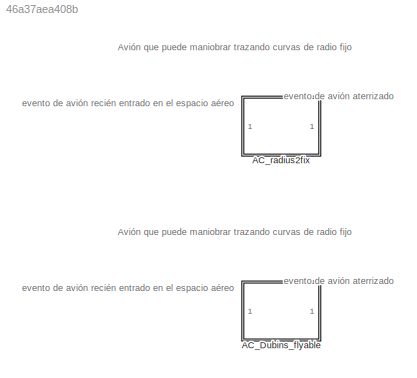
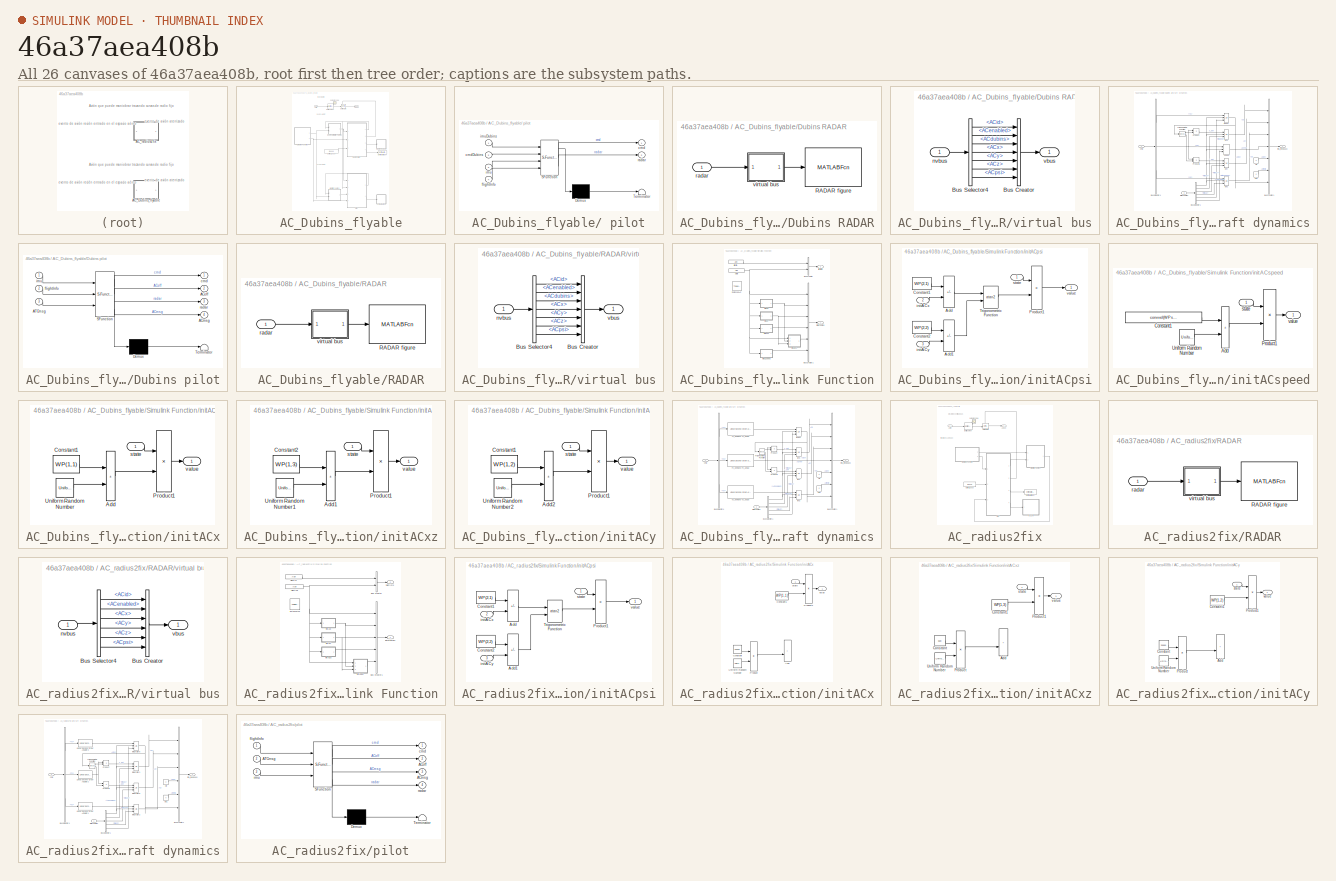
[diagram: thumbnail index - all 26 canvases of the model, root first then tree order]
MODEL slx_46a37aea408b
KIND library
CONFIG AbsTol = auto
CONFIG EnableMultiTasking = off
CONFIG FixedStep = auto
CONFIG MaxStep = auto
CONFIG MinStep = auto
CONFIG RelTol = 1e-3
CONFIG SampleTimeConstraint = Unconstrained
CONFIG SolverName = VariableStepAuto
CONFIG StartTime = 0.0
CONFIG StopTime = 10.0
BLOCK [SubSystem] AC_Dubins_flyable
  Ports = [1, 1]
  RequestExecContextInheritance = off
BLOCK [SubSystem] AC_Dubins_flyable/ pilot
  ErrorFcn = Stateflow.Translate.translate
  PermitHierarchicalResolution = ExplicitOnly
  Ports = [4, 2]
  RequestExecContextInheritance = off
  SFBlockType = Chart
  TreatAsAtomicUnit = on
BLOCK [Demux] AC_Dubins_flyable/ pilot/ Demux 
  Outputs = 1
  Ports = [1, 1]
BLOCK [S-Function] AC_Dubins_flyable/ pilot/ SFunction 
  EnableBusSupport = off
  FunctionName = sf_sfun
  Parameters = WP,WPspeed
  PortCounts = [4 3]
  Ports = [4, 3]
  SFcnIsStateOwnerBlock = off
  SFunctionDeploymentMode = off
  Tag = Stateflow S-Function 3
BLOCK [Terminator] AC_Dubins_flyable/ pilot/ Terminator 
BLOCK [Outport] AC_Dubins_flyable/ pilot/cmd
  VectorParamsAs1DForOutWhenUnconnected = off
BLOCK [Inport] AC_Dubins_flyable/ pilot/cmdDubins
  Port = 2
BLOCK [Inport] AC_Dubins_flyable/ pilot/flightInfo
  Port = 4
BLOCK [Inport] AC_Dubins_flyable/ pilot/imu
  Port = 3
BLOCK [Inport] AC_Dubins_flyable/ pilot/imuDubins
BLOCK [Outport] AC_Dubins_flyable/ pilot/radar
  Port = 2
  VectorParamsAs1DForOutWhenUnconnected = off
BLOCK [Inport] AC_Dubins_flyable/ACin
BLOCK [Outport] AC_Dubins_flyable/ACout
  VectorParamsAs1DForOutWhenUnconnected = off
BLOCK [SubSystem] AC_Dubins_flyable/Dubins RADAR
  NameLocation = top
  Ports = [1]
  RequestExecContextInheritance = off
BLOCK [MATLABFcn] AC_Dubins_flyable/Dubins RADAR/RADAR figure
  MATLABFcn = PBNsim_RADAR
  Output1D = off
  OutputDimensions = 0
  Ports = [1]
  StartFcn = clear functions;\nclc;
BLOCK [Inport] AC_Dubins_flyable/Dubins RADAR/radar
BLOCK [SubSystem] AC_Dubins_flyable/Dubins RADAR/virtual bus
  Ports = [1, 1]
  RequestExecContextInheritance = off
BLOCK [BusCreator] AC_Dubins_flyable/Dubins RADAR/virtual bus/Bus Creator
  DisplayOption = bar
  InheritFromInputs = off
  Inputs = 7
  OutDataTypeStr = Bus: bus_radar
  Ports = [7, 1]
BLOCK [BusSelector] AC_Dubins_flyable/Dubins RADAR/virtual bus/Bus Selector4
  OutputSignals = ACid,ACenabled,ACdubins,ACx,ACy,ACz,ACpsi
  Ports = [1, 7]
BLOCK [Inport] AC_Dubins_flyable/Dubins RADAR/virtual bus/nvbus
BLOCK [Outport] AC_Dubins_flyable/Dubins RADAR/virtual bus/vbus
  VectorParamsAs1DForOutWhenUnconnected = off
BLOCK [SubSystem] AC_Dubins_flyable/Dubins aircraft dynamics
  Ports = [2, 1]
  RequestExecContextInheritance = off
BLOCK [BusCreator] AC_Dubins_flyable/Dubins aircraft dynamics/Bus Creator1
  DisplayOption = bar
  InheritFromInputs = off
  Inputs = 7
  OutDataTypeStr = Bus: bus_IMU
  Ports = [7, 1]
BLOCK [BusSelector] AC_Dubins_flyable/Dubins aircraft dynamics/Bus Selector1
  OutputSignals = ACenabled,initACx,initACy,initACz,initACpsi,initACspeed
  Ports = [1, 6]
BLOCK [BusSelector] AC_Dubins_flyable/Dubins aircraft dynamics/Bus Selector4
  OutputSignals = Ys,Fa,Vs
  Ports = [1, 3]
BLOCK [Integrator] AC_Dubins_flyable/Dubins aircraft dynamics/INTpsi
  ExternalReset = rising
  InitialCondition = initX(3)
  InitialConditionSource = external
  Ports = [3, 1]
BLOCK [Integrator] AC_Dubins_flyable/Dubins aircraft dynamics/INTx
  ExternalReset = rising
  InitialCondition = initX(3)
  InitialConditionSource = external
  Ports = [3, 1]
BLOCK [Integrator] AC_Dubins_flyable/Dubins aircraft dynamics/INTy
  ExternalReset = rising
  InitialCondition = initX(3)
  InitialConditionSource = external
  Ports = [3, 1]
BLOCK [Integrator] AC_Dubins_flyable/Dubins aircraft dynamics/INTz
  ExternalReset = rising
  InitialCondition = initX(3)
  InitialConditionSource = external
  Ports = [3, 1]
BLOCK [Product] AC_Dubins_flyable/Dubins aircraft dynamics/Product
  Ports = [2, 1]
BLOCK [Product] AC_Dubins_flyable/Dubins aircraft dynamics/Product1
  Ports = [2, 1]
BLOCK [Trigonometry] AC_Dubins_flyable/Dubins aircraft dynamics/Trigonometric Function
  Operator = sincos
  Ports = [1, 2]
BLOCK [Inport] AC_Dubins_flyable/Dubins aircraft dynamics/cmd
BLOCK [Constant] AC_Dubins_flyable/Dubins aircraft dynamics/cte
  Value = 0
BLOCK [Constant] AC_Dubins_flyable/Dubins aircraft dynamics/cte1
  Value = 0
BLOCK [Outport] AC_Dubins_flyable/Dubins aircraft dynamics/imu_feedback
  OutputWhenDisabled = reset
  SourceOfInitialOutputValue = Input signal
  VectorParamsAs1DForOutWhenUnconnected = off
BLOCK [Inport] AC_Dubins_flyable/Dubins aircraft dynamics/initDynamics
  Port = 2
BLOCK [Delay] AC_Dubins_flyable/Dubins aircraft dynamics/speed
  DelayLength = 1
  ExternalReset = Rising
  InitialCondition = convvel(240,'kts','m/s');
  InitialConditionSource = Input port
  InputPortMap = u0,r5,p4
  Ports = [3, 1]
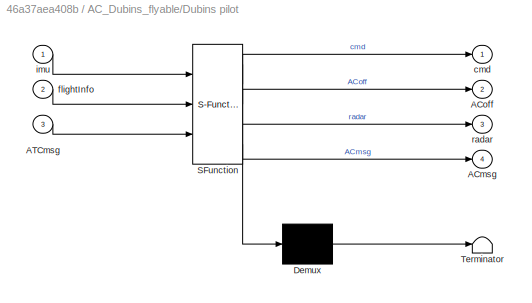
BLOCK [SubSystem] AC_Dubins_flyable/Dubins pilot
  ErrorFcn = Stateflow.Translate.translate
  PermitHierarchicalResolution = ExplicitOnly
  Ports = [3, 4]
  RequestExecContextInheritance = off
  SFBlockType = Chart
  TreatAsAtomicUnit = on
BLOCK [Demux] AC_Dubins_flyable/Dubins pilot/ Demux 
  Outputs = 1
  Ports = [1, 1]
BLOCK [S-Function] AC_Dubins_flyable/Dubins pilot/ SFunction 
  EnableBusSupport = off
  FunctionName = sf_sfun
  Parameters = WP,WPspeed
  PortCounts = [3 5]
  Ports = [3, 5]
  SFcnIsStateOwnerBlock = off
  SFunctionDeploymentMode = off
  Tag = Stateflow S-Function 2
BLOCK [Terminator] AC_Dubins_flyable/Dubins pilot/ Terminator 
BLOCK [Outport] AC_Dubins_flyable/Dubins pilot/ACmsg
  Port = 4
  VectorParamsAs1DForOutWhenUnconnected = off
BLOCK [Outport] AC_Dubins_flyable/Dubins pilot/ACoff
  Port = 2
  VectorParamsAs1DForOutWhenUnconnected = off
BLOCK [Inport] AC_Dubins_flyable/Dubins pilot/ATCmsg
  Port = 3
BLOCK [Outport] AC_Dubins_flyable/Dubins pilot/cmd
  VectorParamsAs1DForOutWhenUnconnected = off
BLOCK [Inport] AC_Dubins_flyable/Dubins pilot/flightInfo
  Port = 2
BLOCK [Inport] AC_Dubins_flyable/Dubins pilot/imu
BLOCK [Outport] AC_Dubins_flyable/Dubins pilot/radar
  Port = 3
  VectorParamsAs1DForOutWhenUnconnected = off
BLOCK [EntityGate] AC_Dubins_flyable/Entity Gate
  InputPortMap = u0,u1
  InputPortMessageModes = m,m
  OperatingMode = Release gate
  OutputPortMap = o0
  OutputPortMessageModes = m
  Ports = [2, 1]
BLOCK [EntityMulticast] AC_Dubins_flyable/Entity Multicast
  InputPortMessageModes = m
  MulticastTag = ACcomm
BLOCK [Queue] AC_Dubins_flyable/Entity Queue
  Capacity = 100
  EntityArrivalSource = Multicast
  MulticastTag = ATCcomm
  OutputPortMap = o5
  OutputPortMessageModes = m
  Ports = [0, 1]
BLOCK [EntityServer] AC_Dubins_flyable/Entity server
  Capacity = 1
  EntryAction = instancedAC(entity.flightId,true);
  InputPortMap = u2
  InputPortMessageModes = m
  NumberEntitiesInBlock = on
  OutputPortMap = o1,o9
  OutputPortMessageModes = n,m
  Ports = [1, 2]
  ServiceCompleteAction = instancedAC(entity.flightId,false);
  ServiceTimeValue = 10
BLOCK [SubSystem] AC_Dubins_flyable/RADAR
  NameLocation = top
  Ports = [1]
  RequestExecContextInheritance = off
BLOCK [MATLABFcn] AC_Dubins_flyable/RADAR/RADAR figure
  MATLABFcn = PBNsim_RADAR
  Output1D = off
  OutputDimensions = 0
  Ports = [1]
  StartFcn = clear functions;\nclc;
BLOCK [Inport] AC_Dubins_flyable/RADAR/radar
BLOCK [SubSystem] AC_Dubins_flyable/RADAR/virtual bus
  Ports = [1, 1]
  RequestExecContextInheritance = off
BLOCK [BusCreator] AC_Dubins_flyable/RADAR/virtual bus/Bus Creator
  DisplayOption = bar
  InheritFromInputs = off
  Inputs = 7
  OutDataTypeStr = Bus: bus_radar
  Ports = [7, 1]
BLOCK [BusSelector] AC_Dubins_flyable/RADAR/virtual bus/Bus Selector4
  OutputSignals = ACid,ACenabled,ACdubins,ACx,ACy,ACz,ACpsi
  Ports = [1, 7]
BLOCK [Inport] AC_Dubins_flyable/RADAR/virtual bus/nvbus
BLOCK [Outport] AC_Dubins_flyable/RADAR/virtual bus/vbus
  VectorParamsAs1DForOutWhenUnconnected = off
BLOCK [SubSystem] AC_Dubins_flyable/Simulink Function
  Ports = [0, 2, 0, 1]
  RequestExecContextInheritance = off
  TreatAsAtomicUnit = on
BLOCK [BusCreator] AC_Dubins_flyable/Simulink Function/Bus Creator
  DisplayOption = bar
  InheritFromInputs = off
  Inputs = 2
  OutDataTypeStr = Bus: bus_ADSB
  Ports = [2, 1]
BLOCK [BusCreator] AC_Dubins_flyable/Simulink Function/Bus Creator1
  DisplayOption = bar
  InheritFromInputs = off
  Inputs = 6
  OutDataTypeStr = Bus: bus_initDynamics
  Ports = [6, 1]
BLOCK [ArgIn] AC_Dubins_flyable/Simulink Function/flightID
  ArgumentName = flightID
BLOCK [Outport] AC_Dubins_flyable/Simulink Function/flightInfo
  Port = 2
  VectorParamsAs1DForOutWhenUnconnected = off
BLOCK [SubSystem] AC_Dubins_flyable/Simulink Function/initACpsi
  Ports = [3, 1]
  RequestExecContextInheritance = off
BLOCK [Sum] AC_Dubins_flyable/Simulink Function/initACpsi/Add
  IconShape = rectangular
  Inputs = +-
  Ports = [2, 1]
BLOCK [Sum] AC_Dubins_flyable/Simulink Function/initACpsi/Add1
  IconShape = rectangular
  Inputs = +-
  Ports = [2, 1]
BLOCK [Constant] AC_Dubins_flyable/Simulink Function/initACpsi/Constant1
  Value = WP(2,1)
BLOCK [Constant] AC_Dubins_flyable/Simulink Function/initACpsi/Constant2
  Value = WP(2,2)
BLOCK [Product] AC_Dubins_flyable/Simulink Function/initACpsi/Product1
  Ports = [2, 1]
BLOCK [Trigonometry] AC_Dubins_flyable/Simulink Function/initACpsi/Trigonometric Function
  Operator = atan2
  Ports = [2, 1]
BLOCK [Inport] AC_Dubins_flyable/Simulink Function/initACpsi/initACx
  Port = 2
BLOCK [Inport] AC_Dubins_flyable/Simulink Function/initACpsi/initACy
  Port = 3
BLOCK [Inport] AC_Dubins_flyable/Simulink Function/initACpsi/state
BLOCK [Outport] AC_Dubins_flyable/Simulink Function/initACpsi/value
  VectorParamsAs1DForOutWhenUnconnected = off
BLOCK [SubSystem] AC_Dubins_flyable/Simulink Function/initACspeed
  Ports = [1, 1]
  RequestExecContextInheritance = off
BLOCK [Sum] AC_Dubins_flyable/Simulink Function/initACspeed/Add
  IconShape = rectangular
  Ports = [2, 1]
BLOCK [Constant] AC_Dubins_flyable/Simulink Function/initACspeed/Constant1
  Value = convvel(WPspeed(2),'kts','m/s');
BLOCK [Product] AC_Dubins_flyable/Simulink Function/initACspeed/Product1
  Ports = [2, 1]
BLOCK [UniformRandomNumber] AC_Dubins_flyable/Simulink Function/initACspeed/Uniform Random Number
  Commented = on
  Maximum = 100
  Minimum = 0
  Seed = randi(10000)
BLOCK [Inport] AC_Dubins_flyable/Simulink Function/initACspeed/state
BLOCK [Outport] AC_Dubins_flyable/Simulink Function/initACspeed/value
  VectorParamsAs1DForOutWhenUnconnected = off
BLOCK [SubSystem] AC_Dubins_flyable/Simulink Function/initACx
  Ports = [1, 1]
  RequestExecContextInheritance = off
BLOCK [Sum] AC_Dubins_flyable/Simulink Function/initACx/Add
  IconShape = rectangular
  Ports = [2, 1]
BLOCK [Constant] AC_Dubins_flyable/Simulink Function/initACx/Constant1
  Value = WP(1,1)
BLOCK [Product] AC_Dubins_flyable/Simulink Function/initACx/Product1
  Ports = [2, 1]
BLOCK [UniformRandomNumber] AC_Dubins_flyable/Simulink Function/initACx/Uniform Random Number
  Commented = on
  Maximum = 100
  Minimum = 0
  Seed = randi(10000)
BLOCK [Inport] AC_Dubins_flyable/Simulink Function/initACx/state
BLOCK [Outport] AC_Dubins_flyable/Simulink Function/initACx/value
  VectorParamsAs1DForOutWhenUnconnected = off
BLOCK [SubSystem] AC_Dubins_flyable/Simulink Function/initACxz
  Ports = [1, 1]
  RequestExecContextInheritance = off
BLOCK [Sum] AC_Dubins_flyable/Simulink Function/initACxz/Add1
  IconShape = rectangular
  Ports = [2, 1]
BLOCK [Constant] AC_Dubins_flyable/Simulink Function/initACxz/Constant2
  Value = WP(1,3)
BLOCK [Product] AC_Dubins_flyable/Simulink Function/initACxz/Product1
  Ports = [2, 1]
BLOCK [UniformRandomNumber] AC_Dubins_flyable/Simulink Function/initACxz/Uniform Random Number1
  Commented = on
  Maximum = 20
  Minimum = 0
  Seed = randi(10000)
BLOCK [Inport] AC_Dubins_flyable/Simulink Function/initACxz/state
BLOCK [Outport] AC_Dubins_flyable/Simulink Function/initACxz/value
  VectorParamsAs1DForOutWhenUnconnected = off
BLOCK [SubSystem] AC_Dubins_flyable/Simulink Function/initACy
  Ports = [1, 1]
  RequestExecContextInheritance = off
BLOCK [Sum] AC_Dubins_flyable/Simulink Function/initACy/Add2
  IconShape = rectangular
  Ports = [2, 1]
BLOCK [Constant] AC_Dubins_flyable/Simulink Function/initACy/Constant1
  Value = WP(1,2)
BLOCK [Product] AC_Dubins_flyable/Simulink Function/initACy/Product1
  Ports = [2, 1]
BLOCK [UniformRandomNumber] AC_Dubins_flyable/Simulink Function/initACy/Uniform Random Number2
  Commented = on
  Maximum = 100
  Minimum = 0
  Seed = randi(10000)
BLOCK [Inport] AC_Dubins_flyable/Simulink Function/initACy/state
BLOCK [Outport] AC_Dubins_flyable/Simulink Function/initACy/value
  VectorParamsAs1DForOutWhenUnconnected = off
BLOCK [Outport] AC_Dubins_flyable/Simulink Function/initDynamics
  VectorParamsAs1DForOutWhenUnconnected = off
BLOCK [TriggerPort] AC_Dubins_flyable/Simulink Function/instancedAC
  FunctionName = instancedAC
  FunctionVisibility = scoped
  IsSimulinkFunction = on
  Ports = []
  StatesWhenEnabling = held
  TriggerType = function-call
  VariantControl = Variant
BLOCK [ArgIn] AC_Dubins_flyable/Simulink Function/state
  ArgumentName = state
  OutDataTypeStr = boolean
  Port = 2
BLOCK [SubSystem] AC_Dubins_flyable/aircraft dynamics
  Ports = [2, 1]
  RequestExecContextInheritance = off
BLOCK [BusCreator] AC_Dubins_flyable/aircraft dynamics/Bus Creator1
  DisplayOption = bar
  InheritFromInputs = off
  Inputs = 7
  OutDataTypeStr = Bus: bus_IMU
  Ports = [7, 1]
BLOCK [BusSelector] AC_Dubins_flyable/aircraft dynamics/Bus Selector1
  OutputSignals = ACenabled,initACx,initACy,initACz,initACpsi
  Ports = [1, 5]
BLOCK [BusSelector] AC_Dubins_flyable/aircraft dynamics/Bus Selector4
  OutputSignals = Ys,Fa,Vs
  Ports = [1, 3]
BLOCK [Reference] AC_Dubins_flyable/aircraft dynamics/Fv_demand - Fv_actual  REF=aerolibactuator/Linear Second-Order Actuator
  Ports = [1, 1]
  SourceBlock = aerolibactuator/Linear Second-Order Actuator
  SourceProductBaseCode = AE
  SourceType = LinearSecondOrderActuator
BLOCK [Integrator] AC_Dubins_flyable/aircraft dynamics/INTpsi
  ExternalReset = rising
  InitialCondition = initX(3)
  InitialConditionSource = external
  Ports = [3, 1]
BLOCK [Integrator] AC_Dubins_flyable/aircraft dynamics/INTx
  ExternalReset = rising
  InitialCondition = initX(3)
  InitialConditionSource = external
  Ports = [3, 1]
BLOCK [Integrator] AC_Dubins_flyable/aircraft dynamics/INTy
  ExternalReset = rising
  InitialCondition = initX(3)
  InitialConditionSource = external
  Ports = [3, 1]
BLOCK [Integrator] AC_Dubins_flyable/aircraft dynamics/INTz
  ExternalReset = rising
  InitialCondition = initX(3)
  InitialConditionSource = external
  Ports = [3, 1]
BLOCK [Product] AC_Dubins_flyable/aircraft dynamics/Product
  Ports = [2, 1]
BLOCK [Product] AC_Dubins_flyable/aircraft dynamics/Product1
  Ports = [2, 1]
BLOCK [Trigonometry] AC_Dubins_flyable/aircraft dynamics/Trigonometric Function
  Operator = sincos
  Ports = [1, 2]
BLOCK [Reference] AC_Dubins_flyable/aircraft dynamics/Vs_demand - Vs_actual  REF=aerolibactuator/Linear Second-Order Actuator
  Ports = [1, 1]
  SourceBlock = aerolibactuator/Linear Second-Order Actuator
  SourceProductBaseCode = AE
  SourceType = LinearSecondOrderActuator
BLOCK [Reference] AC_Dubins_flyable/aircraft dynamics/Ys_demand - Ys_actual  REF=aerolibactuator/Linear Second-Order Actuator
  Ports = [1, 1]
  SourceBlock = aerolibactuator/Linear Second-Order Actuator
  SourceProductBaseCode = AE
  SourceType = LinearSecondOrderActuator
BLOCK [Inport] AC_Dubins_flyable/aircraft dynamics/cmd
BLOCK [Constant] AC_Dubins_flyable/aircraft dynamics/cte
  Value = 0
BLOCK [Constant] AC_Dubins_flyable/aircraft dynamics/cte1
  Value = 0
BLOCK [Outport] AC_Dubins_flyable/aircraft dynamics/imu_feedback
  OutputWhenDisabled = reset
  SourceOfInitialOutputValue = Input signal
  VectorParamsAs1DForOutWhenUnconnected = off
BLOCK [Inport] AC_Dubins_flyable/aircraft dynamics/initDynamics
  Port = 2
BLOCK [Scope] AC_Dubins_flyable/server scope
  Floating = off
  NumInputPorts = 1
  Ports = [1]
  ScopeSpecificationString = Simulink.scopes.TimeScopeBlockCfg('CurrentConfiguration', extmgr.ConfigurationSet(extmgr.Configuration('Core','General UI',true,'ShowStatusbar',false),extmgr.Configuration('Core','Source UI',true),extmgr.Configuration('Sources','WiredSimulink',true,'DataLoggingVariableName','ScopeData1'),extmgr.Configuration('Visuals','Time Domain',true,'SerializedDisplays',{struct('MinYLimReal','-1','MaxYLimReal'...<+1587ch>
BLOCK [SubSystem] AC_radius2fix
  Ports = [1, 1]
  RequestExecContextInheritance = off
BLOCK [Inport] AC_radius2fix/ACin
BLOCK [Outport] AC_radius2fix/ACout
  VectorParamsAs1DForOutWhenUnconnected = off
BLOCK [EntityGate] AC_radius2fix/Entity Gate
  InputPortMap = u0,u1
  InputPortMessageModes = m,m
  OperatingMode = Release gate
  OutputPortMap = o0
  OutputPortMessageModes = m
  Ports = [2, 1]
BLOCK [EntityMulticast] AC_radius2fix/Entity Multicast
  InputPortMessageModes = m
  MulticastTag = ACcomm
BLOCK [Queue] AC_radius2fix/Entity Queue
  Capacity = 100
  EntityArrivalSource = Multicast
  MulticastTag = ATCcomm
  OutputPortMap = o5
  OutputPortMessageModes = m
  Ports = [0, 1]
BLOCK [EntityServer] AC_radius2fix/Entity server
  Capacity = 1
  EntryAction = instancedAC(entity.flightId,true);
  InputPortMap = u2
  InputPortMessageModes = m
  NumberEntitiesInBlock = on
  OutputPortMap = o1,o9
  OutputPortMessageModes = n,m
  Ports = [1, 2]
  ServiceCompleteAction = instancedAC(entity.flightId,false);
  ServiceTimeValue = 10
BLOCK [SubSystem] AC_radius2fix/RADAR
  Ports = [1]
  RequestExecContextInheritance = off
BLOCK [MATLABFcn] AC_radius2fix/RADAR/RADAR figure
  MATLABFcn = PBNsim_RADAR
  Output1D = off
  OutputDimensions = 0
  Ports = [1]
  StartFcn = clear functions;\nclc;
BLOCK [Inport] AC_radius2fix/RADAR/radar
BLOCK [SubSystem] AC_radius2fix/RADAR/virtual bus
  Ports = [1, 1]
  RequestExecContextInheritance = off
BLOCK [BusCreator] AC_radius2fix/RADAR/virtual bus/Bus Creator
  DisplayOption = bar
  InheritFromInputs = off
  Inputs = 6
  OutDataTypeStr = Bus: bus_radar
  Ports = [6, 1]
BLOCK [BusSelector] AC_radius2fix/RADAR/virtual bus/Bus Selector4
  OutputSignals = ACid,ACenabled,ACx,ACy,ACz,ACpsi
  Ports = [1, 6]
BLOCK [Inport] AC_radius2fix/RADAR/virtual bus/nvbus
BLOCK [Outport] AC_radius2fix/RADAR/virtual bus/vbus
  VectorParamsAs1DForOutWhenUnconnected = off
BLOCK [SubSystem] AC_radius2fix/Simulink Function
  Ports = [0, 2, 0, 1]
  RequestExecContextInheritance = off
  TreatAsAtomicUnit = on
BLOCK [BusCreator] AC_radius2fix/Simulink Function/Bus Creator
  DisplayOption = bar
  InheritFromInputs = off
  Inputs = 2
  OutDataTypeStr = Bus: bus_ADSB
  Ports = [2, 1]
BLOCK [BusCreator] AC_radius2fix/Simulink Function/Bus Creator1
  DisplayOption = bar
  InheritFromInputs = off
  Inputs = 5
  OutDataTypeStr = Bus: bus_initDynamics
  Ports = [5, 1]
BLOCK [ArgIn] AC_radius2fix/Simulink Function/flightID
  ArgumentName = flightID
BLOCK [ArgIn] AC_radius2fix/Simulink Function/flightID1
  ArgumentName = state
  OutDataTypeStr = boolean
  Port = 2
BLOCK [Outport] AC_radius2fix/Simulink Function/flightInfo
  Port = 2
  VectorParamsAs1DForOutWhenUnconnected = off
BLOCK [SubSystem] AC_radius2fix/Simulink Function/initACpsi
  Ports = [3, 1]
  RequestExecContextInheritance = off
BLOCK [Sum] AC_radius2fix/Simulink Function/initACpsi/Add
  IconShape = rectangular
  Inputs = +-
  Ports = [2, 1]
BLOCK [Sum] AC_radius2fix/Simulink Function/initACpsi/Add1
  IconShape = rectangular
  Inputs = +-
  Ports = [2, 1]
BLOCK [Constant] AC_radius2fix/Simulink Function/initACpsi/Constant1
  Value = WP(2,1)
BLOCK [Constant] AC_radius2fix/Simulink Function/initACpsi/Constant2
  Value = WP(2,2)
BLOCK [Product] AC_radius2fix/Simulink Function/initACpsi/Product1
  Ports = [2, 1]
BLOCK [Trigonometry] AC_radius2fix/Simulink Function/initACpsi/Trigonometric Function
  Operator = atan2
  Ports = [2, 1]
BLOCK [Inport] AC_radius2fix/Simulink Function/initACpsi/initACx
  Port = 2
BLOCK [Inport] AC_radius2fix/Simulink Function/initACpsi/initACy
  Port = 3
BLOCK [Inport] AC_radius2fix/Simulink Function/initACpsi/state
BLOCK [Outport] AC_radius2fix/Simulink Function/initACpsi/value
  VectorParamsAs1DForOutWhenUnconnected = off
BLOCK [SubSystem] AC_radius2fix/Simulink Function/initACx
  Ports = [1, 1]
  RequestExecContextInheritance = off
BLOCK [Sum] AC_radius2fix/Simulink Function/initACx/Add
  Commented = on
  IconShape = rectangular
  Ports = [2, 1]
BLOCK [Constant] AC_radius2fix/Simulink Function/initACx/Constant
  Commented = on
  Value = 20000
BLOCK [Constant] AC_radius2fix/Simulink Function/initACx/Constant1
  Value = WP(1,1)
BLOCK [Product] AC_radius2fix/Simulink Function/initACx/Product
  Commented = on
  Ports = [2, 1]
BLOCK [Product] AC_radius2fix/Simulink Function/initACx/Product1
  Ports = [2, 1]
BLOCK [UniformRandomNumber] AC_radius2fix/Simulink Function/initACx/Uniform Random Number
  Commented = on
  Minimum = 0
  Seed = randi(10000)
BLOCK [Inport] AC_radius2fix/Simulink Function/initACx/state
BLOCK [Outport] AC_radius2fix/Simulink Function/initACx/value
  VectorParamsAs1DForOutWhenUnconnected = off
BLOCK [SubSystem] AC_radius2fix/Simulink Function/initACxz
  Ports = [1, 1]
  RequestExecContextInheritance = off
BLOCK [Sum] AC_radius2fix/Simulink Function/initACxz/Add
  Commented = on
  IconShape = rectangular
  Ports = [2, 1]
BLOCK [Constant] AC_radius2fix/Simulink Function/initACxz/Constant
  Commented = on
  Value = 500
BLOCK [Constant] AC_radius2fix/Simulink Function/initACxz/Constant1
  Value = WP(1,3)
BLOCK [Product] AC_radius2fix/Simulink Function/initACxz/Product
  Commented = on
  Ports = [2, 1]
BLOCK [Product] AC_radius2fix/Simulink Function/initACxz/Product1
  Ports = [2, 1]
BLOCK [UniformRandomNumber] AC_radius2fix/Simulink Function/initACxz/Uniform Random Number
  Commented = on
  Minimum = 0
  Seed = randi(10000)
BLOCK [Inport] AC_radius2fix/Simulink Function/initACxz/state
BLOCK [Outport] AC_radius2fix/Simulink Function/initACxz/value
  VectorParamsAs1DForOutWhenUnconnected = off
BLOCK [SubSystem] AC_radius2fix/Simulink Function/initACy
  Ports = [1, 1]
  RequestExecContextInheritance = off
BLOCK [Sum] AC_radius2fix/Simulink Function/initACy/Add
  Commented = on
  IconShape = rectangular
  Ports = [2, 1]
BLOCK [Constant] AC_radius2fix/Simulink Function/initACy/Constant
  Commented = on
  Value = 20000
BLOCK [Constant] AC_radius2fix/Simulink Function/initACy/Constant1
  Value = WP(1,2)
BLOCK [Product] AC_radius2fix/Simulink Function/initACy/Product
  Commented = on
  Ports = [2, 1]
BLOCK [Product] AC_radius2fix/Simulink Function/initACy/Product1
  Ports = [2, 1]
BLOCK [UniformRandomNumber] AC_radius2fix/Simulink Function/initACy/Uniform Random Number
  Commented = on
  Minimum = 0
  Seed = randi(10000)
BLOCK [Inport] AC_radius2fix/Simulink Function/initACy/state
BLOCK [Outport] AC_radius2fix/Simulink Function/initACy/value
  VectorParamsAs1DForOutWhenUnconnected = off
BLOCK [Outport] AC_radius2fix/Simulink Function/initDynamics
  VectorParamsAs1DForOutWhenUnconnected = off
BLOCK [TriggerPort] AC_radius2fix/Simulink Function/instanceAC1
  FunctionName = instancedAC
  FunctionVisibility = scoped
  IsSimulinkFunction = on
  Ports = []
  StatesWhenEnabling = held
  TriggerType = function-call
  VariantControl = Variant
BLOCK [SubSystem] AC_radius2fix/aircraft dynamics
  Ports = [2, 1]
  RequestExecContextInheritance = off
BLOCK [BusCreator] AC_radius2fix/aircraft dynamics/Bus Creator1
  DisplayOption = bar
  InheritFromInputs = off
  Inputs = 6
  OutDataTypeStr = Bus: bus_IMU
  Ports = [6, 1]
BLOCK [BusSelector] AC_radius2fix/aircraft dynamics/Bus Selector1
  OutputSignals = ACenabled,initACx,initACy,initACz,initACpsi
  Ports = [1, 5]
BLOCK [BusSelector] AC_radius2fix/aircraft dynamics/Bus Selector4
  OutputSignals = Ys,Fs,Vs
  Ports = [1, 3]
BLOCK [Integrator] AC_radius2fix/aircraft dynamics/Integrator1
  ExternalReset = rising
  InitialCondition = initX(3)
  InitialConditionSource = external
  Ports = [3, 1]
BLOCK [Integrator] AC_radius2fix/aircraft dynamics/Integrator2
  ExternalReset = rising
  InitialCondition = initX(3)
  InitialConditionSource = external
  Ports = [3, 1]
BLOCK [Integrator] AC_radius2fix/aircraft dynamics/Integrator5
  ExternalReset = rising
  InitialCondition = initX(3)
  InitialConditionSource = external
  Ports = [3, 1]
BLOCK [Integrator] AC_radius2fix/aircraft dynamics/Integrator6
  ExternalReset = rising
  InitialCondition = initX(3)
  InitialConditionSource = external
  Ports = [3, 1]
BLOCK [Reference] AC_radius2fix/aircraft dynamics/Linear Second-Order Actuator1  REF=aerolibactuator/Linear Second-Order Actuator
  Ports = [1, 1]
  SourceBlock = aerolibactuator/Linear Second-Order Actuator
  SourceProductBaseCode = AE
  SourceType = LinearSecondOrderActuator
BLOCK [Reference] AC_radius2fix/aircraft dynamics/Linear Second-Order Actuator2  REF=aerolibactuator/Linear Second-Order Actuator
  Ports = [1, 1]
  SourceBlock = aerolibactuator/Linear Second-Order Actuator
  SourceProductBaseCode = AE
  SourceType = LinearSecondOrderActuator
BLOCK [Reference] AC_radius2fix/aircraft dynamics/Linear Second-Order Actuator3  REF=aerolibactuator/Linear Second-Order Actuator
  Commented = through
  Ports = [1, 1]
  SourceBlock = aerolibactuator/Linear Second-Order Actuator
  SourceProductBaseCode = AE
  SourceType = LinearSecondOrderActuator
BLOCK [Product] AC_radius2fix/aircraft dynamics/Product
  Ports = [2, 1]
BLOCK [Product] AC_radius2fix/aircraft dynamics/Product1
  Ports = [2, 1]
BLOCK [Trigonometry] AC_radius2fix/aircraft dynamics/Trigonometric Function
  Operator = sincos
  Ports = [1, 2]
BLOCK [Inport] AC_radius2fix/aircraft dynamics/cmd
  Port = 2
BLOCK [Constant] AC_radius2fix/aircraft dynamics/cte
  Value = 0
BLOCK [Constant] AC_radius2fix/aircraft dynamics/cte1
  Value = 0
BLOCK [Outport] AC_radius2fix/aircraft dynamics/imu_feedback
  OutputWhenDisabled = reset
  SourceOfInitialOutputValue = Input signal
  VectorParamsAs1DForOutWhenUnconnected = off
BLOCK [Inport] AC_radius2fix/aircraft dynamics/initDynamics
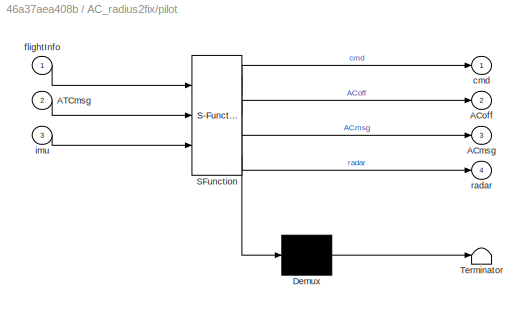
BLOCK [SubSystem] AC_radius2fix/pilot
  ErrorFcn = Stateflow.Translate.translate
  PermitHierarchicalResolution = ExplicitOnly
  Ports = [3, 4]
  RequestExecContextInheritance = off
  SFBlockType = Chart
  TreatAsAtomicUnit = on
BLOCK [Demux] AC_radius2fix/pilot/ Demux 
  Outputs = 1
  Ports = [1, 1]
BLOCK [S-Function] AC_radius2fix/pilot/ SFunction 
  EnableBusSupport = off
  FunctionName = sf_sfun
  Parameters = WP,WPabort,WPspeed
  PortCounts = [3 5]
  Ports = [3, 5]
  SFcnIsStateOwnerBlock = off
  SFunctionDeploymentMode = off
  Tag = Stateflow S-Function 1
BLOCK [Terminator] AC_radius2fix/pilot/ Terminator 
BLOCK [Outport] AC_radius2fix/pilot/ACmsg
  Port = 3
  VectorParamsAs1DForOutWhenUnconnected = off
BLOCK [Outport] AC_radius2fix/pilot/ACoff
  Port = 2
  VectorParamsAs1DForOutWhenUnconnected = off
BLOCK [Inport] AC_radius2fix/pilot/ATCmsg
  Port = 2
BLOCK [Outport] AC_radius2fix/pilot/cmd
  VectorParamsAs1DForOutWhenUnconnected = off
BLOCK [Inport] AC_radius2fix/pilot/flightInfo
BLOCK [Inport] AC_radius2fix/pilot/imu
  Port = 3
BLOCK [Outport] AC_radius2fix/pilot/radar
  Port = 4
  VectorParamsAs1DForOutWhenUnconnected = off
BLOCK [Scope] AC_radius2fix/server scope
  Floating = off
  NumInputPorts = 1
  Ports = [1]
  ScopeSpecificationString = Simulink.scopes.TimeScopeBlockCfg('CurrentConfiguration', extmgr.ConfigurationSet(extmgr.Configuration('Core','General UI',true,'ShowStatusbar',false),extmgr.Configuration('Core','Source UI',true),extmgr.Configuration('Sources','WiredSimulink',true,'DataLoggingVariableName','ScopeData1'),extmgr.Configuration('Visuals','Time Domain',true,'SerializedDisplays',{struct('MinYLimReal','-1','MaxYLimReal'...<+1613ch>
ANNOTATION (root): Avión que puede maniobrar trazando curvas de radio fijo
ANNOTATION (root): evento de avión aterrizado
ANNOTATION (root): evento de avión recién entrado en el espacio aéreo
ANNOTATION AC_Dubins_flyable: Dubins Aircraft
ANNOTATION AC_Dubins_flyable: Flyable Aircraft
ANNOTATION AC_Dubins_flyable: flow of Aircrafts
ANNOTATION AC_radius2fix: Discrete-event flow of ACs
ANNOTATION AC_radius2fix: time-driven AC model
LINE AC_Dubins_flyable/ pilot:1 -> AC_Dubins_flyable/aircraft dynamics:1
LINE AC_Dubins_flyable/ pilot:2 -> AC_Dubins_flyable/RADAR:1
LINE AC_Dubins_flyable/ACin:1 -> AC_Dubins_flyable/Entity server:1
LINE AC_Dubins_flyable/Dubins RADAR/radar:1 -> AC_Dubins_flyable/Dubins RADAR/virtual bus:1
LINE AC_Dubins_flyable/Dubins RADAR/virtual bus/Bus Creator:1 -> AC_Dubins_flyable/Dubins RADAR/virtual bus/vbus:1
LINE AC_Dubins_flyable/Dubins RADAR/virtual bus/Bus Selector4:1 -> AC_Dubins_flyable/Dubins RADAR/virtual bus/Bus Creator:1
LINE AC_Dubins_flyable/Dubins RADAR/virtual bus/Bus Selector4:2 -> AC_Dubins_flyable/Dubins RADAR/virtual bus/Bus Creator:2
LINE AC_Dubins_flyable/Dubins RADAR/virtual bus/Bus Selector4:3 -> AC_Dubins_flyable/Dubins RADAR/virtual bus/Bus Creator:3
LINE AC_Dubins_flyable/Dubins RADAR/virtual bus/Bus Selector4:4 -> AC_Dubins_flyable/Dubins RADAR/virtual bus/Bus Creator:4
LINE AC_Dubins_flyable/Dubins RADAR/virtual bus/Bus Selector4:5 -> AC_Dubins_flyable/Dubins RADAR/virtual bus/Bus Creator:5
LINE AC_Dubins_flyable/Dubins RADAR/virtual bus/Bus Selector4:6 -> AC_Dubins_flyable/Dubins RADAR/virtual bus/Bus Creator:6
LINE AC_Dubins_flyable/Dubins RADAR/virtual bus/Bus Selector4:7 -> AC_Dubins_flyable/Dubins RADAR/virtual bus/Bus Creator:7
LINE AC_Dubins_flyable/Dubins RADAR/virtual bus/nvbus:1 -> AC_Dubins_flyable/Dubins RADAR/virtual bus/Bus Selector4:1
LINE AC_Dubins_flyable/Dubins RADAR/virtual bus:1 -> AC_Dubins_flyable/Dubins RADAR/RADAR figure:1
LINE AC_Dubins_flyable/Dubins aircraft dynamics/Bus Creator1:1 -> AC_Dubins_flyable/Dubins aircraft dynamics/imu_feedback:1
NET AC_Dubins_flyable/Dubins aircraft dynamics/Bus Selector1:1 -> AC_Dubins_flyable/Dubins aircraft dynamics/INTpsi:2, AC_Dubins_flyable/Dubins aircraft dynamics/INTx:2, AC_Dubins_flyable/Dubins aircraft dynamics/INTy:2, AC_Dubins_flyable/Dubins aircraft dynamics/INTz:2, AC_Dubins_flyable/Dubins aircraft dynamics/speed:2
LINE AC_Dubins_flyable/Dubins aircraft dynamics/Bus Selector1:2 -> AC_Dubins_flyable/Dubins aircraft dynamics/INTx:3
LINE AC_Dubins_flyable/Dubins aircraft dynamics/Bus Selector1:3 -> AC_Dubins_flyable/Dubins aircraft dynamics/INTy:3
LINE AC_Dubins_flyable/Dubins aircraft dynamics/Bus Selector1:4 -> AC_Dubins_flyable/Dubins aircraft dynamics/INTz:3
LINE AC_Dubins_flyable/Dubins aircraft dynamics/Bus Selector1:5 -> AC_Dubins_flyable/Dubins aircraft dynamics/INTpsi:3
LINE AC_Dubins_flyable/Dubins aircraft dynamics/Bus Selector1:6 -> AC_Dubins_flyable/Dubins aircraft dynamics/speed:3
LINE AC_Dubins_flyable/Dubins aircraft dynamics/Bus Selector4:1 -> AC_Dubins_flyable/Dubins aircraft dynamics/INTpsi:1
NET AC_Dubins_flyable/Dubins aircraft dynamics/Bus Selector4:2 -> AC_Dubins_flyable/Dubins aircraft dynamics/Product1:1, AC_Dubins_flyable/Dubins aircraft dynamics/Product:1, AC_Dubins_flyable/Dubins aircraft dynamics/speed:1
LINE AC_Dubins_flyable/Dubins aircraft dynamics/Bus Selector4:3 -> AC_Dubins_flyable/Dubins aircraft dynamics/INTz:1
NET AC_Dubins_flyable/Dubins aircraft dynamics/INTpsi:1 -> AC_Dubins_flyable/Dubins aircraft dynamics/Bus Creator1:7, AC_Dubins_flyable/Dubins aircraft dynamics/Trigonometric Function:1
LINE AC_Dubins_flyable/Dubins aircraft dynamics/INTx:1 -> AC_Dubins_flyable/Dubins aircraft dynamics/Bus Creator1:1
LINE AC_Dubins_flyable/Dubins aircraft dynamics/INTy:1 -> AC_Dubins_flyable/Dubins aircraft dynamics/Bus Creator1:2
LINE AC_Dubins_flyable/Dubins aircraft dynamics/INTz:1 -> AC_Dubins_flyable/Dubins aircraft dynamics/Bus Creator1:3
LINE AC_Dubins_flyable/Dubins aircraft dynamics/Product1:1 -> AC_Dubins_flyable/Dubins aircraft dynamics/INTy:1
LINE AC_Dubins_flyable/Dubins aircraft dynamics/Product:1 -> AC_Dubins_flyable/Dubins aircraft dynamics/INTx:1
LINE AC_Dubins_flyable/Dubins aircraft dynamics/Trigonometric Function:1 -> AC_Dubins_flyable/Dubins aircraft dynamics/Product:2
LINE AC_Dubins_flyable/Dubins aircraft dynamics/Trigonometric Function:2 -> AC_Dubins_flyable/Dubins aircraft dynamics/Product1:2
LINE AC_Dubins_flyable/Dubins aircraft dynamics/cmd:1 -> AC_Dubins_flyable/Dubins aircraft dynamics/Bus Selector4:1
LINE AC_Dubins_flyable/Dubins aircraft dynamics/cte1:1 -> AC_Dubins_flyable/Dubins aircraft dynamics/Bus Creator1:6
LINE AC_Dubins_flyable/Dubins aircraft dynamics/cte:1 -> AC_Dubins_flyable/Dubins aircraft dynamics/Bus Creator1:5
LINE AC_Dubins_flyable/Dubins aircraft dynamics/initDynamics:1 -> AC_Dubins_flyable/Dubins aircraft dynamics/Bus Selector1:1
LINE AC_Dubins_flyable/Dubins aircraft dynamics/speed:1 -> AC_Dubins_flyable/Dubins aircraft dynamics/Bus Creator1:4
NET AC_Dubins_flyable/Dubins aircraft dynamics:1 -> AC_Dubins_flyable/ pilot:1, AC_Dubins_flyable/Dubins pilot:1
NET AC_Dubins_flyable/Dubins pilot:1 -> AC_Dubins_flyable/ pilot:2, AC_Dubins_flyable/Dubins aircraft dynamics:1
LINE AC_Dubins_flyable/Dubins pilot:2 -> AC_Dubins_flyable/Entity Gate:1
LINE AC_Dubins_flyable/Dubins pilot:3 -> AC_Dubins_flyable/Dubins RADAR:1
LINE AC_Dubins_flyable/Dubins pilot:4 -> AC_Dubins_flyable/Entity Multicast:1
LINE AC_Dubins_flyable/Entity Gate:1 -> AC_Dubins_flyable/ACout:1
LINE AC_Dubins_flyable/Entity Queue:1 -> AC_Dubins_flyable/Dubins pilot:3
LINE AC_Dubins_flyable/Entity server:1 -> AC_Dubins_flyable/server scope:1
LINE AC_Dubins_flyable/Entity server:2 -> AC_Dubins_flyable/Entity Gate:2
LINE AC_Dubins_flyable/RADAR/radar:1 -> AC_Dubins_flyable/RADAR/virtual bus:1
LINE AC_Dubins_flyable/RADAR/virtual bus/Bus Creator:1 -> AC_Dubins_flyable/RADAR/virtual bus/vbus:1
LINE AC_Dubins_flyable/RADAR/virtual bus/Bus Selector4:1 -> AC_Dubins_flyable/RADAR/virtual bus/Bus Creator:1
LINE AC_Dubins_flyable/RADAR/virtual bus/Bus Selector4:2 -> AC_Dubins_flyable/RADAR/virtual bus/Bus Creator:2
LINE AC_Dubins_flyable/RADAR/virtual bus/Bus Selector4:3 -> AC_Dubins_flyable/RADAR/virtual bus/Bus Creator:3
LINE AC_Dubins_flyable/RADAR/virtual bus/Bus Selector4:4 -> AC_Dubins_flyable/RADAR/virtual bus/Bus Creator:4
LINE AC_Dubins_flyable/RADAR/virtual bus/Bus Selector4:5 -> AC_Dubins_flyable/RADAR/virtual bus/Bus Creator:5
LINE AC_Dubins_flyable/RADAR/virtual bus/Bus Selector4:6 -> AC_Dubins_flyable/RADAR/virtual bus/Bus Creator:6
LINE AC_Dubins_flyable/RADAR/virtual bus/Bus Selector4:7 -> AC_Dubins_flyable/RADAR/virtual bus/Bus Creator:7
LINE AC_Dubins_flyable/RADAR/virtual bus/nvbus:1 -> AC_Dubins_flyable/RADAR/virtual bus/Bus Selector4:1
LINE AC_Dubins_flyable/RADAR/virtual bus:1 -> AC_Dubins_flyable/RADAR/RADAR figure:1
LINE AC_Dubins_flyable/Simulink Function/Bus Creator1:1 -> AC_Dubins_flyable/Simulink Function/initDynamics:1
LINE AC_Dubins_flyable/Simulink Function/Bus Creator:1 -> AC_Dubins_flyable/Simulink Function/flightInfo:1
LINE AC_Dubins_flyable/Simulink Function/flightID:1 -> AC_Dubins_flyable/Simulink Function/Bus Creator:1
LINE AC_Dubins_flyable/Simulink Function/initACpsi/Add1:1 -> AC_Dubins_flyable/Simulink Function/initACpsi/Trigonometric Function:2
LINE AC_Dubins_flyable/Simulink Function/initACpsi/Add:1 -> AC_Dubins_flyable/Simulink Function/initACpsi/Trigonometric Function:1
LINE AC_Dubins_flyable/Simulink Function/initACpsi/Constant1:1 -> AC_Dubins_flyable/Simulink Function/initACpsi/Add:1
LINE AC_Dubins_flyable/Simulink Function/initACpsi/Constant2:1 -> AC_Dubins_flyable/Simulink Function/initACpsi/Add1:1
LINE AC_Dubins_flyable/Simulink Function/initACpsi/Product1:1 -> AC_Dubins_flyable/Simulink Function/initACpsi/value:1
LINE AC_Dubins_flyable/Simulink Function/initACpsi/Trigonometric Function:1 -> AC_Dubins_flyable/Simulink Function/initACpsi/Product1:2
LINE AC_Dubins_flyable/Simulink Function/initACpsi/initACx:1 -> AC_Dubins_flyable/Simulink Function/initACpsi/Add:2
LINE AC_Dubins_flyable/Simulink Function/initACpsi/initACy:1 -> AC_Dubins_flyable/Simulink Function/initACpsi/Add1:2
LINE AC_Dubins_flyable/Simulink Function/initACpsi/state:1 -> AC_Dubins_flyable/Simulink Function/initACpsi/Product1:1
LINE AC_Dubins_flyable/Simulink Function/initACpsi:1 -> AC_Dubins_flyable/Simulink Function/Bus Creator1:5
LINE AC_Dubins_flyable/Simulink Function/initACspeed/Add:1 -> AC_Dubins_flyable/Simulink Function/initACspeed/Product1:2
LINE AC_Dubins_flyable/Simulink Function/initACspeed/Constant1:1 -> AC_Dubins_flyable/Simulink Function/initACspeed/Add:1
LINE AC_Dubins_flyable/Simulink Function/initACspeed/Product1:1 -> AC_Dubins_flyable/Simulink Function/initACspeed/value:1
LINE AC_Dubins_flyable/Simulink Function/initACspeed/Uniform Random Number:1 -> AC_Dubins_flyable/Simulink Function/initACspeed/Add:2
LINE AC_Dubins_flyable/Simulink Function/initACspeed/state:1 -> AC_Dubins_flyable/Simulink Function/initACspeed/Product1:1
LINE AC_Dubins_flyable/Simulink Function/initACspeed:1 -> AC_Dubins_flyable/Simulink Function/Bus Creator1:6
LINE AC_Dubins_flyable/Simulink Function/initACx/Add:1 -> AC_Dubins_flyable/Simulink Function/initACx/Product1:2
LINE AC_Dubins_flyable/Simulink Function/initACx/Constant1:1 -> AC_Dubins_flyable/Simulink Function/initACx/Add:1
LINE AC_Dubins_flyable/Simulink Function/initACx/Product1:1 -> AC_Dubins_flyable/Simulink Function/initACx/value:1
LINE AC_Dubins_flyable/Simulink Function/initACx/Uniform Random Number:1 -> AC_Dubins_flyable/Simulink Function/initACx/Add:2
LINE AC_Dubins_flyable/Simulink Function/initACx/state:1 -> AC_Dubins_flyable/Simulink Function/initACx/Product1:1
NET AC_Dubins_flyable/Simulink Function/initACx:1 -> AC_Dubins_flyable/Simulink Function/Bus Creator1:2, AC_Dubins_flyable/Simulink Function/initACpsi:2
LINE AC_Dubins_flyable/Simulink Function/initACxz/Add1:1 -> AC_Dubins_flyable/Simulink Function/initACxz/Product1:2
LINE AC_Dubins_flyable/Simulink Function/initACxz/Constant2:1 -> AC_Dubins_flyable/Simulink Function/initACxz/Add1:1
LINE AC_Dubins_flyable/Simulink Function/initACxz/Product1:1 -> AC_Dubins_flyable/Simulink Function/initACxz/value:1
LINE AC_Dubins_flyable/Simulink Function/initACxz/Uniform Random Number1:1 -> AC_Dubins_flyable/Simulink Function/initACxz/Add1:2
LINE AC_Dubins_flyable/Simulink Function/initACxz/state:1 -> AC_Dubins_flyable/Simulink Function/initACxz/Product1:1
LINE AC_Dubins_flyable/Simulink Function/initACxz:1 -> AC_Dubins_flyable/Simulink Function/Bus Creator1:4
LINE AC_Dubins_flyable/Simulink Function/initACy/Add2:1 -> AC_Dubins_flyable/Simulink Function/initACy/Product1:2
LINE AC_Dubins_flyable/Simulink Function/initACy/Constant1:1 -> AC_Dubins_flyable/Simulink Function/initACy/Add2:1
LINE AC_Dubins_flyable/Simulink Function/initACy/Product1:1 -> AC_Dubins_flyable/Simulink Function/initACy/value:1
LINE AC_Dubins_flyable/Simulink Function/initACy/Uniform Random Number2:1 -> AC_Dubins_flyable/Simulink Function/initACy/Add2:2
LINE AC_Dubins_flyable/Simulink Function/initACy/state:1 -> AC_Dubins_flyable/Simulink Function/initACy/Product1:1
NET AC_Dubins_flyable/Simulink Function/initACy:1 -> AC_Dubins_flyable/Simulink Function/Bus Creator1:3, AC_Dubins_flyable/Simulink Function/initACpsi:3
NET AC_Dubins_flyable/Simulink Function/state:1 -> AC_Dubins_flyable/Simulink Function/Bus Creator1:1, AC_Dubins_flyable/Simulink Function/Bus Creator:2, AC_Dubins_flyable/Simulink Function/initACpsi:1, AC_Dubins_flyable/Simulink Function/initACspeed:1, AC_Dubins_flyable/Simulink Function/initACx:1, AC_Dubins_flyable/Simulink Function/initACxz:1, AC_Dubins_flyable/Simulink Function/initACy:1
NET AC_Dubins_flyable/Simulink Function:1 -> AC_Dubins_flyable/Dubins aircraft dynamics:2, AC_Dubins_flyable/aircraft dynamics:2
NET AC_Dubins_flyable/Simulink Function:2 -> AC_Dubins_flyable/ pilot:4, AC_Dubins_flyable/Dubins pilot:2
LINE AC_Dubins_flyable/aircraft dynamics/Bus Creator1:1 -> AC_Dubins_flyable/aircraft dynamics/imu_feedback:1
NET AC_Dubins_flyable/aircraft dynamics/Bus Selector1:1 -> AC_Dubins_flyable/aircraft dynamics/INTpsi:2, AC_Dubins_flyable/aircraft dynamics/INTx:2, AC_Dubins_flyable/aircraft dynamics/INTy:2, AC_Dubins_flyable/aircraft dynamics/INTz:2
LINE AC_Dubins_flyable/aircraft dynamics/Bus Selector1:2 -> AC_Dubins_flyable/aircraft dynamics/INTx:3
LINE AC_Dubins_flyable/aircraft dynamics/Bus Selector1:3 -> AC_Dubins_flyable/aircraft dynamics/INTy:3
LINE AC_Dubins_flyable/aircraft dynamics/Bus Selector1:4 -> AC_Dubins_flyable/aircraft dynamics/INTz:3
LINE AC_Dubins_flyable/aircraft dynamics/Bus Selector1:5 -> AC_Dubins_flyable/aircraft dynamics/INTpsi:3
LINE AC_Dubins_flyable/aircraft dynamics/Bus Selector4:1 -> AC_Dubins_flyable/aircraft dynamics/Ys_demand - Ys_actual:1
LINE AC_Dubins_flyable/aircraft dynamics/Bus Selector4:2 -> AC_Dubins_flyable/aircraft dynamics/Fv_demand - Fv_actual:1
LINE AC_Dubins_flyable/aircraft dynamics/Bus Selector4:3 -> AC_Dubins_flyable/aircraft dynamics/Vs_demand - Vs_actual:1
NET AC_Dubins_flyable/aircraft dynamics/Fv_demand - Fv_actual:1 -> AC_Dubins_flyable/aircraft dynamics/Bus Creator1:4, AC_Dubins_flyable/aircraft dynamics/Product1:1, AC_Dubins_flyable/aircraft dynamics/Product:1
NET AC_Dubins_flyable/aircraft dynamics/INTpsi:1 -> AC_Dubins_flyable/aircraft dynamics/Bus Creator1:7, AC_Dubins_flyable/aircraft dynamics/Trigonometric Function:1
LINE AC_Dubins_flyable/aircraft dynamics/INTx:1 -> AC_Dubins_flyable/aircraft dynamics/Bus Creator1:1
LINE AC_Dubins_flyable/aircraft dynamics/INTy:1 -> AC_Dubins_flyable/aircraft dynamics/Bus Creator1:2
LINE AC_Dubins_flyable/aircraft dynamics/INTz:1 -> AC_Dubins_flyable/aircraft dynamics/Bus Creator1:3
LINE AC_Dubins_flyable/aircraft dynamics/Product1:1 -> AC_Dubins_flyable/aircraft dynamics/INTy:1
LINE AC_Dubins_flyable/aircraft dynamics/Product:1 -> AC_Dubins_flyable/aircraft dynamics/INTx:1
LINE AC_Dubins_flyable/aircraft dynamics/Trigonometric Function:1 -> AC_Dubins_flyable/aircraft dynamics/Product:2
LINE AC_Dubins_flyable/aircraft dynamics/Trigonometric Function:2 -> AC_Dubins_flyable/aircraft dynamics/Product1:2
LINE AC_Dubins_flyable/aircraft dynamics/Vs_demand - Vs_actual:1 -> AC_Dubins_flyable/aircraft dynamics/INTz:1
LINE AC_Dubins_flyable/aircraft dynamics/Ys_demand - Ys_actual:1 -> AC_Dubins_flyable/aircraft dynamics/INTpsi:1
LINE AC_Dubins_flyable/aircraft dynamics/cmd:1 -> AC_Dubins_flyable/aircraft dynamics/Bus Selector4:1
LINE AC_Dubins_flyable/aircraft dynamics/cte1:1 -> AC_Dubins_flyable/aircraft dynamics/Bus Creator1:6
LINE AC_Dubins_flyable/aircraft dynamics/cte:1 -> AC_Dubins_flyable/aircraft dynamics/Bus Creator1:5
LINE AC_Dubins_flyable/aircraft dynamics/initDynamics:1 -> AC_Dubins_flyable/aircraft dynamics/Bus Selector1:1
LINE AC_Dubins_flyable/aircraft dynamics:1 -> AC_Dubins_flyable/ pilot:3
LINE AC_radius2fix/ACin:1 -> AC_radius2fix/Entity server:1
LINE AC_radius2fix/Entity Gate:1 -> AC_radius2fix/ACout:1
LINE AC_radius2fix/Entity Queue:1 -> AC_radius2fix/pilot:2
LINE AC_radius2fix/Entity server:1 -> AC_radius2fix/server scope:1
LINE AC_radius2fix/Entity server:2 -> AC_radius2fix/Entity Gate:2
LINE AC_radius2fix/RADAR/radar:1 -> AC_radius2fix/RADAR/virtual bus:1
LINE AC_radius2fix/RADAR/virtual bus/Bus Creator:1 -> AC_radius2fix/RADAR/virtual bus/vbus:1
LINE AC_radius2fix/RADAR/virtual bus/Bus Selector4:1 -> AC_radius2fix/RADAR/virtual bus/Bus Creator:1
LINE AC_radius2fix/RADAR/virtual bus/Bus Selector4:2 -> AC_radius2fix/RADAR/virtual bus/Bus Creator:2
LINE AC_radius2fix/RADAR/virtual bus/Bus Selector4:3 -> AC_radius2fix/RADAR/virtual bus/Bus Creator:3
LINE AC_radius2fix/RADAR/virtual bus/Bus Selector4:4 -> AC_radius2fix/RADAR/virtual bus/Bus Creator:4
LINE AC_radius2fix/RADAR/virtual bus/Bus Selector4:5 -> AC_radius2fix/RADAR/virtual bus/Bus Creator:5
LINE AC_radius2fix/RADAR/virtual bus/Bus Selector4:6 -> AC_radius2fix/RADAR/virtual bus/Bus Creator:6
LINE AC_radius2fix/RADAR/virtual bus/nvbus:1 -> AC_radius2fix/RADAR/virtual bus/Bus Selector4:1
LINE AC_radius2fix/RADAR/virtual bus:1 -> AC_radius2fix/RADAR/RADAR figure:1
LINE AC_radius2fix/Simulink Function/Bus Creator1:1 -> AC_radius2fix/Simulink Function/initDynamics:1
LINE AC_radius2fix/Simulink Function/Bus Creator:1 -> AC_radius2fix/Simulink Function/flightInfo:1
NET AC_radius2fix/Simulink Function/flightID1:1 -> AC_radius2fix/Simulink Function/Bus Creator1:1, AC_radius2fix/Simulink Function/Bus Creator:2, AC_radius2fix/Simulink Function/initACpsi:1, AC_radius2fix/Simulink Function/initACx:1, AC_radius2fix/Simulink Function/initACxz:1, AC_radius2fix/Simulink Function/initACy:1
LINE AC_radius2fix/Simulink Function/flightID:1 -> AC_radius2fix/Simulink Function/Bus Creator:1
LINE AC_radius2fix/Simulink Function/initACpsi/Add1:1 -> AC_radius2fix/Simulink Function/initACpsi/Trigonometric Function:2
LINE AC_radius2fix/Simulink Function/initACpsi/Add:1 -> AC_radius2fix/Simulink Function/initACpsi/Trigonometric Function:1
LINE AC_radius2fix/Simulink Function/initACpsi/Constant1:1 -> AC_radius2fix/Simulink Function/initACpsi/Add:1
LINE AC_radius2fix/Simulink Function/initACpsi/Constant2:1 -> AC_radius2fix/Simulink Function/initACpsi/Add1:1
LINE AC_radius2fix/Simulink Function/initACpsi/Product1:1 -> AC_radius2fix/Simulink Function/initACpsi/value:1
LINE AC_radius2fix/Simulink Function/initACpsi/Trigonometric Function:1 -> AC_radius2fix/Simulink Function/initACpsi/Product1:2
LINE AC_radius2fix/Simulink Function/initACpsi/initACx:1 -> AC_radius2fix/Simulink Function/initACpsi/Add:2
LINE AC_radius2fix/Simulink Function/initACpsi/initACy:1 -> AC_radius2fix/Simulink Function/initACpsi/Add1:2
LINE AC_radius2fix/Simulink Function/initACpsi/state:1 -> AC_radius2fix/Simulink Function/initACpsi/Product1:1
LINE AC_radius2fix/Simulink Function/initACpsi:1 -> AC_radius2fix/Simulink Function/Bus Creator1:5
LINE AC_radius2fix/Simulink Function/initACx/Constant1:1 -> AC_radius2fix/Simulink Function/initACx/Product1:2
LINE AC_radius2fix/Simulink Function/initACx/Constant:1 -> AC_radius2fix/Simulink Function/initACx/Product:1
LINE AC_radius2fix/Simulink Function/initACx/Product1:1 -> AC_radius2fix/Simulink Function/initACx/value:1
LINE AC_radius2fix/Simulink Function/initACx/Product:1 -> AC_radius2fix/Simulink Function/initACx/Add:2
LINE AC_radius2fix/Simulink Function/initACx/Uniform Random Number:1 -> AC_radius2fix/Simulink Function/initACx/Product:2
LINE AC_radius2fix/Simulink Function/initACx/state:1 -> AC_radius2fix/Simulink Function/initACx/Product1:1
NET AC_radius2fix/Simulink Function/initACx:1 -> AC_radius2fix/Simulink Function/Bus Creator1:2, AC_radius2fix/Simulink Function/initACpsi:2
LINE AC_radius2fix/Simulink Function/initACxz/Constant1:1 -> AC_radius2fix/Simulink Function/initACxz/Product1:2
LINE AC_radius2fix/Simulink Function/initACxz/Constant:1 -> AC_radius2fix/Simulink Function/initACxz/Product:1
LINE AC_radius2fix/Simulink Function/initACxz/Product1:1 -> AC_radius2fix/Simulink Function/initACxz/value:1
LINE AC_radius2fix/Simulink Function/initACxz/Product:1 -> AC_radius2fix/Simulink Function/initACxz/Add:2
LINE AC_radius2fix/Simulink Function/initACxz/Uniform Random Number:1 -> AC_radius2fix/Simulink Function/initACxz/Product:2
LINE AC_radius2fix/Simulink Function/initACxz/state:1 -> AC_radius2fix/Simulink Function/initACxz/Product1:1
LINE AC_radius2fix/Simulink Function/initACxz:1 -> AC_radius2fix/Simulink Function/Bus Creator1:4
LINE AC_radius2fix/Simulink Function/initACy/Constant1:1 -> AC_radius2fix/Simulink Function/initACy/Product1:2
LINE AC_radius2fix/Simulink Function/initACy/Constant:1 -> AC_radius2fix/Simulink Function/initACy/Product:1
LINE AC_radius2fix/Simulink Function/initACy/Product1:1 -> AC_radius2fix/Simulink Function/initACy/value:1
LINE AC_radius2fix/Simulink Function/initACy/Product:1 -> AC_radius2fix/Simulink Function/initACy/Add:2
LINE AC_radius2fix/Simulink Function/initACy/Uniform Random Number:1 -> AC_radius2fix/Simulink Function/initACy/Product:2
LINE AC_radius2fix/Simulink Function/initACy/state:1 -> AC_radius2fix/Simulink Function/initACy/Product1:1
NET AC_radius2fix/Simulink Function/initACy:1 -> AC_radius2fix/Simulink Function/Bus Creator1:3, AC_radius2fix/Simulink Function/initACpsi:3
LINE AC_radius2fix/Simulink Function:1 -> AC_radius2fix/aircraft dynamics:1
LINE AC_radius2fix/Simulink Function:2 -> AC_radius2fix/pilot:1
LINE AC_radius2fix/aircraft dynamics/Bus Creator1:1 -> AC_radius2fix/aircraft dynamics/imu_feedback:1
NET AC_radius2fix/aircraft dynamics/Bus Selector1:1 -> AC_radius2fix/aircraft dynamics/Integrator1:2, AC_radius2fix/aircraft dynamics/Integrator2:2, AC_radius2fix/aircraft dynamics/Integrator5:2, AC_radius2fix/aircraft dynamics/Integrator6:2
LINE AC_radius2fix/aircraft dynamics/Bus Selector1:2 -> AC_radius2fix/aircraft dynamics/Integrator1:3
LINE AC_radius2fix/aircraft dynamics/Bus Selector1:3 -> AC_radius2fix/aircraft dynamics/Integrator6:3
LINE AC_radius2fix/aircraft dynamics/Bus Selector1:4 -> AC_radius2fix/aircraft dynamics/Integrator2:3
LINE AC_radius2fix/aircraft dynamics/Bus Selector1:5 -> AC_radius2fix/aircraft dynamics/Integrator5:3
LINE AC_radius2fix/aircraft dynamics/Bus Selector4:1 -> AC_radius2fix/aircraft dynamics/Linear Second-Order Actuator3:1
LINE AC_radius2fix/aircraft dynamics/Bus Selector4:2 -> AC_radius2fix/aircraft dynamics/Linear Second-Order Actuator2:1
LINE AC_radius2fix/aircraft dynamics/Bus Selector4:3 -> AC_radius2fix/aircraft dynamics/Linear Second-Order Actuator1:1
LINE AC_radius2fix/aircraft dynamics/Integrator1:1 -> AC_radius2fix/aircraft dynamics/Bus Creator1:1
LINE AC_radius2fix/aircraft dynamics/Integrator2:1 -> AC_radius2fix/aircraft dynamics/Bus Creator1:3
NET AC_radius2fix/aircraft dynamics/Integrator5:1 -> AC_radius2fix/aircraft dynamics/Bus Creator1:6, AC_radius2fix/aircraft dynamics/Trigonometric Function:1
LINE AC_radius2fix/aircraft dynamics/Integrator6:1 -> AC_radius2fix/aircraft dynamics/Bus Creator1:2
LINE AC_radius2fix/aircraft dynamics/Linear Second-Order Actuator1:1 -> AC_radius2fix/aircraft dynamics/Integrator2:1
NET AC_radius2fix/aircraft dynamics/Linear Second-Order Actuator2:1 -> AC_radius2fix/aircraft dynamics/Product1:1, AC_radius2fix/aircraft dynamics/Product:1
LINE AC_radius2fix/aircraft dynamics/Linear Second-Order Actuator3:1 -> AC_radius2fix/aircraft dynamics/Integrator5:1
LINE AC_radius2fix/aircraft dynamics/Product1:1 -> AC_radius2fix/aircraft dynamics/Integrator6:1
LINE AC_radius2fix/aircraft dynamics/Product:1 -> AC_radius2fix/aircraft dynamics/Integrator1:1
LINE AC_radius2fix/aircraft dynamics/Trigonometric Function:1 -> AC_radius2fix/aircraft dynamics/Product:2
LINE AC_radius2fix/aircraft dynamics/Trigonometric Function:2 -> AC_radius2fix/aircraft dynamics/Product1:2
LINE AC_radius2fix/aircraft dynamics/cmd:1 -> AC_radius2fix/aircraft dynamics/Bus Selector4:1
LINE AC_radius2fix/aircraft dynamics/cte1:1 -> AC_radius2fix/aircraft dynamics/Bus Creator1:5
LINE AC_radius2fix/aircraft dynamics/cte:1 -> AC_radius2fix/aircraft dynamics/Bus Creator1:4
LINE AC_radius2fix/aircraft dynamics/initDynamics:1 -> AC_radius2fix/aircraft dynamics/Bus Selector1:1
LINE AC_radius2fix/aircraft dynamics:1 -> AC_radius2fix/pilot:3
LINE AC_radius2fix/pilot:1 -> AC_radius2fix/aircraft dynamics:2
LINE AC_radius2fix/pilot:2 -> AC_radius2fix/Entity Gate:1
LINE AC_radius2fix/pilot:3 -> AC_radius2fix/Entity Multicast:1
LINE AC_radius2fix/pilot:4 -> AC_radius2fix/RADAR:1
note: NET lines group one-source signal fan-out (src -> all destinations, sorted); 1:1 wires keep LINE
CHART AC_radius2fix/pilot states=15 transitions=11
  STATE_LABEL 'NAVIGATOR'
  STATE_LABEL 'OFF\nentry:\nACid = 0;\nACenabled = 0;\ncmd.Fs = 123; %m/s'
  STATE_LABEL 'ON\nentry:\ninitAC;\nACmsgSend;'
  STATE_LABEL 'initAC'
  STATE_LABEL "SCRIPT:\nfunction initAC\n\n% Inicializo identificador del avion\nACid = flightInfo.ACid;\nACenabled = 1;\nACaborted = 0;\n\n% Inicializo bus de comandos\ncoder.extrinsic('convvel');\ncmd.Fs = convvel(240,'kts','m/s'); %123 m/s\ncmd.Vs = 0;\ncmd.Ys = 0;\n\n% inicializo navegación\ncWP = [WP(2,:) WPspeed(2)];\n\n\n\n\n\n"  <repeated x3 — deduplicated; at blocks: pilot>
  STATE_LABEL 'landed = landedAC'
  STATE_LABEL 'SCRIPT:\nfunction landed = landedAC\n% Concluye si el avion ha terminado de recorrer la pista\n\nlanded = false;\nthreshold = 5;\nif abs(cWP(4) - 50) < threshold % la velocidad a 50 solo la tiene el último waypoint\n% if cWP(4) == 50 % la velocidad a 50 solo la tiene el último waypoint\n    %calculo segmento desde el AC a este WP\n    s = cWP(1:2)-[imu.ACx imu.ACy];\n    dist = norm(s);\n    if dist < 50\n   ...<+35ch>'
  STATE_LABEL 'FLYING\nentry, during:\nfly;\nACmsgSend;\n'
  STATE_LABEL 'fly'
  STATE_LABEL "SCRIPT:\nfunction fly\n\n% radio de giro\nr = 2815; % convlength(1.52,'naut mi','m')\n\n\n%calculo vector AC -> WP actual\nvec_AC_cWP = cWP(1:2)-[imu.ACx imu.ACy];\ndist = norm(vec_AC_cWP);\n\n\n\n%calculo vector AC->dirAC\nvec_AC_dir = [sin(imu.ACpsi) cos(imu.ACpsi)];\n\n\n%determino si el giro es a izquierda o derecha\nizqder = vec_AC_dir(1)*vec_AC_cWP(2) - vec_AC_dir(2)*vec_AC_cWP(1);\n\nif izqder > 0\n    cmd.Ys =...<+309ch>"  <repeated x3 — deduplicated; at blocks: pilot>
  STATE_LABEL 'LANDED\nentry:\nlanded;\nACoff.data = true;\nsend(ACoff);\nACmsgSend;\n'
  STATE_LABEL 'landed'
  STATE_LABEL 'SCRIPT:\nfunction landed\ncmd.Fs = 0;\ncmd.Vs = 0;\ncmd.Ys = 0;\nACenabled = 0;\n\n'
  STATE_LABEL 'abort = abortLanding'
  STATE_LABEL 'SCRIPT:\nfunction abort = abortLanding\n% Decido si abortar el aterrizaje\n% \n% persistent previously_aborted \n% if isempty(previously_aborted)\n%     previously_aborted = false;\n% end\n\nabort = false;\n\nif ACaborted\n    return\nend\n\nif (ACid == 5) && (imu.ACz < 90) % DA/H: 295 ft (89.9 m)\n    abort = true;\n    ACaborted = 1;\n%    cWP = [WP(WPabort,:) WPspeed(WPabort)];\nend\n\n'
  STATE_LABEL 'ACmsgSend'
  STATE_LABEL 'SCRIPT:\nfunction ACmsgSend\nACmsg.ACid      = ACid;\nACmsg.ACenabled = ACenabled;\nACmsg.ACx       = imu.ACx;\nACmsg.ACy       = imu.ACy;\nACmsg.ACz       = imu.ACz;\nACmsg.ACpsi     = imu.ACpsi;\nACmsg.ACaborted = ACaborted;\nsend(ACmsg)'
  STATE_LABEL '[flightInfo.ACenabled]'
  STATE_LABEL '[landedAC]'
  STATE_LABEL '[abortLanding]'
  STATE_LABEL 'OFF\nentry:\nACid = 0;\nACenabled = 0;\ncmd.Fs = 123; %m/s'
  STATE_LABEL 'ON\nentry:\ninitAC;\nACmsgSend;'
  STATE_LABEL 'initAC'
  STATE_LABEL 'initAC'
  STATE_LABEL 'landed = landedAC'
  STATE_LABEL 'SCRIPT:\nfunction landed = landedAC\n% Concluye si el avion ha terminado de recorrer la pista\n\nlanded = false;\nthreshold = 5;\nif abs(cWP(4) - 50) < threshold % la velocidad a 50 solo la tiene el último waypoint\n% if cWP(4) == 50 % la velocidad a 50 solo la tiene el último waypoint\n    %calculo segmento desde el AC a este WP\n    s = cWP(1:2)-[imu.ACx imu.ACy];\n    dist = norm(s);\n    if dist < 50\n   ...<+35ch>'
  STATE_LABEL 'FLYING\nentry, during:\nfly;\nACmsgSend;\n'
  STATE_LABEL 'fly'
  STATE_LABEL 'fly'
  STATE_LABEL 'LANDED\nentry:\nlanded;\nACoff.data = true;\nsend(ACoff);\nACmsgSend;\n'
  STATE_LABEL 'landed'
  STATE_LABEL 'SCRIPT:\nfunction landed\ncmd.Fs = 0;\ncmd.Vs = 0;\ncmd.Ys = 0;\nACenabled = 0;\n\n'
  STATE_LABEL 'landed'
  STATE_LABEL 'SCRIPT:\nfunction landed\ncmd.Fs = 0;\ncmd.Vs = 0;\ncmd.Ys = 0;\nACenabled = 0;\n\n'
  STATE_LABEL 'abort = abortLanding'
  STATE_LABEL 'SCRIPT:\nfunction abort = abortLanding\n% Decido si abortar el aterrizaje\n% \n% persistent previously_aborted \n% if isempty(previously_aborted)\n%     previously_aborted = false;\n% end\n\nabort = false;\n\nif ACaborted\n    return\nend\n\nif (ACid == 5) && (imu.ACz < 90) % DA/H: 295 ft (89.9 m)\n    abort = true;\n    ACaborted = 1;\n%    cWP = [WP(WPabort,:) WPspeed(WPabort)];\nend\n\n'
CHART AC_Dubins_flyable/Dubins pilot states=16 transitions=11
  STATE_LABEL 'NAVIGATOR'
  STATE_LABEL 'OFF\nentry:\nreset\n'
  STATE_LABEL 'reset'
  STATE_LABEL "SCRIPT:\nfunction reset\n\n% reseteo estado de la aeronave\nACid = 0;\nACenabled = 0;\nACaborted = 0;\n\n% reseteo movimiento\ncoder.extrinsic('convvel');\ncmd.Fa = 123.4667; %convvel(cWP(4),'kts','m/s'); %123 m/s\ncmd.Vs = 0;\ncmd.Ys = 0;"  <repeated x6 — deduplicated; at blocks: Dubins pilot, pilot>
  STATE_LABEL 'ON\nentry:\nwakeUp\nACmsgSend'
  STATE_LABEL 'wakeUp'
  STATE_LABEL 'SCRIPT:\nfunction wakeUp\n\n% inicializo navegación\nACid = flightInfo.ACid;\nACenabled = 1;\ncWP = [WP(2,:) WPspeed(2)];\n'
  STATE_LABEL 'landed = landedAC'
  STATE_LABEL 'SCRIPT:\nfunction landed = landedAC\n% Concluye si el avion ha terminado de recorrer la pista\n\nlanded = false;\n\nif cWP(4) == 50 % la velocidad a 50 solo la tiene el último waypoint\n    %calculo segmento desde el AC a este WP\n    s = cWP(1:2)-[imu.ACx imu.ACy];\n    dist = norm(s);\n    if dist < 50\n        landed = true;\n    end\nend\n\n\n\n'
  STATE_LABEL 'FLYING\nentry, during:\nfly\nACmsgSend\n'
  STATE_LABEL 'fly'
  STATE_LABEL "SCRIPT:\nfunction fly\n\n% radio de giro\nr = 2815; % convlength(1.52,'naut mi','m')\n\n%calculo vector AC -> WP actual\nvec_ac_wp = cWP(1:2) - [imu.ACx imu.ACy];\ndis_ac_wp = norm(vec_ac_wp);\n\n\n%calculo vector AC->dirAC\nvec_ac_dir = [sin(imu.ACpsi) cos(imu.ACpsi)];\n\n\n%determino si el giro es a izquierda o derecha, y el angulo\nang_dir_wp = angulo(vec_ac_dir,vec_ac_wp);\n\n\n%giramos hacia el lado correcto\nif...<+3289ch>"  <repeated x3 — deduplicated; at blocks: Dubins pilot>
  STATE_LABEL 'SLEEP\nentry:\nsleep\nACmsgSend\n'
  STATE_LABEL 'sleep'
  STATE_LABEL 'SCRIPT:\nfunction sleep\n\n% Desactivamos el avión y dejamos que pase un ciclo \n% ara que el RADAR lo elimine\nACenabled = 0;\n\nACoff.data = true;\nsend(ACoff);\n\n\n'
  STATE_LABEL 'ACmsgSend'
  STATE_LABEL 'SCRIPT:\nfunction ACmsgSend\nACmsg.data.ACid      = ACid;\nACmsg.data.ACenabled = ACenabled;\nACmsg.data.ACx       = imu.ACx;\nACmsg.data.ACy       = imu.ACy;\nACmsg.data.ACz       = imu.ACz;\nACmsg.data.ACpsi     = imu.ACpsi;\nACmsg.data.ACaborted = ACaborted;\nsend(ACmsg)'
  STATE_LABEL 'abort = abortLanding'
  STATE_LABEL 'SCRIPT:\nfunction abort = abortLanding\n% Decido si abortar el aterrizaje\n% \n% persistent previously_aborted \n% if isempty(previously_aborted)\n%     previously_aborted = false;\n% end\n\nabort = false;\n\nif ACaborted\n    return\nend\n\nif (ACid == 5) && (imu.ACz < 90) % DA/H: 295 ft (89.9 m)\n    abort = true;\n    ACaborted = 1;\nend\n\n'
  STATE_LABEL '[flightInfo.ACenabled]'
  STATE_LABEL '[landedAC]'
  STATE_LABEL '[abortLanding]'
  STATE_LABEL 'OFF\nentry:\nreset\n'
  STATE_LABEL 'reset'
  STATE_LABEL 'reset'
  STATE_LABEL 'ON\nentry:\nwakeUp\nACmsgSend'
  STATE_LABEL 'wakeUp'
  STATE_LABEL 'SCRIPT:\nfunction wakeUp\n\n% inicializo navegación\nACid = flightInfo.ACid;\nACenabled = 1;\ncWP = [WP(2,:) WPspeed(2)];\n'
  STATE_LABEL 'wakeUp'
  STATE_LABEL 'SCRIPT:\nfunction wakeUp\n\n% inicializo navegación\nACid = flightInfo.ACid;\nACenabled = 1;\ncWP = [WP(2,:) WPspeed(2)];\n'
  STATE_LABEL 'landed = landedAC'
  STATE_LABEL 'SCRIPT:\nfunction landed = landedAC\n% Concluye si el avion ha terminado de recorrer la pista\n\nlanded = false;\n\nif cWP(4) == 50 % la velocidad a 50 solo la tiene el último waypoint\n    %calculo segmento desde el AC a este WP\n    s = cWP(1:2)-[imu.ACx imu.ACy];\n    dist = norm(s);\n    if dist < 50\n        landed = true;\n    end\nend\n\n\n\n'
  STATE_LABEL 'FLYING\nentry, during:\nfly\nACmsgSend\n'
  STATE_LABEL 'fly'
  STATE_LABEL 'fly'
  STATE_LABEL 'SLEEP\nentry:\nsleep\nACmsgSend\n'
CHART AC_Dubins_flyable/ pilot states=12 transitions=5
  STATE_LABEL 'NAVIGATOR'
  STATE_LABEL 'WAKEUP\nentry:\nwakeUp\n'
  STATE_LABEL 'wakeUp'
  STATE_LABEL 'SCRIPT:\nfunction wakeUp\n\n% inicializo navegación\nACid = flightInfo.ACid;\nACenabled = 1;\ncWP = [WP(2,:) WPspeed(2)];\n\n\n\n\n\n\n\n'
  STATE_LABEL 'OFF\nentry:\nreset'
  STATE_LABEL 'reset'
  STATE_LABEL 'SLEEP\nentry:\nsleep'
  STATE_LABEL 'sleep'
  STATE_LABEL 'SCRIPT:\nfunction sleep\n\n% Desactivamos el avión y dejamos que pase un ciclo \n% ara que el RADAR lo elimine\nACenabled = 0;\n'
  STATE_LABEL 'FLY\nentry, during:\nfollow\n'
  STATE_LABEL 'follow'
  STATE_LABEL 'SCRIPT:\nfunction follow\n\np = [imuDubins.ACx-imu.ACx, imuDubins.ACy-imu.ACy];\n\nalpha = imuDubins.ACpsi + cmdDubins.Ys;\nF = [sin(alpha) cos(alpha)] * cmdDubins.Fa;\n\nFp = (F*60 + p) / 60;\ncmd.Fa = norm(Fp);\nalphap = atan2(Fp(1),Fp(2));\n    \ncmd.Ys = AngleBetweenOrientations(imu.ACpsi,alphap);\ncmd.Ys = min(cmd.Ys,+0.05);\ncmd.Ys = max(cmd.Ys,-0.05);\n\ndz   = imuDubins.ACz - imu.ACz;    \nkV  = 0.1;\nvarVs...<+422ch>'  <repeated x3 — deduplicated; at blocks: pilot>
  STATE_LABEL 'resp = landed'
  STATE_LABEL 'SCRIPT:\nfunction resp = landed\n% Concluye si el avion ha terminado de recorrer la pista\n\nresp = false;\n\nif imu.ACz < 50 % estamos a menos de 50 metros de altura\n    %busco WP con velocidad 50 (solo el último la tiene)\n    fWP = WP(find(WPspeed==50,1),:);\n    %calculo segmento desde el AC a este WP\n    s = fWP(1:2)-[imu.ACx imu.ACy];\n    dist = norm(s);\n    if dist < 50\n        resp = true;\n    end...<+8ch>'
  STATE_LABEL '[flightInfo.ACenabled]'
  STATE_LABEL '[landed]'
  STATE_LABEL 'WAKEUP\nentry:\nwakeUp\n'
  STATE_LABEL 'wakeUp'
  STATE_LABEL 'SCRIPT:\nfunction wakeUp\n\n% inicializo navegación\nACid = flightInfo.ACid;\nACenabled = 1;\ncWP = [WP(2,:) WPspeed(2)];\n\n\n\n\n\n\n\n'
  STATE_LABEL 'wakeUp'
  STATE_LABEL 'SCRIPT:\nfunction wakeUp\n\n% inicializo navegación\nACid = flightInfo.ACid;\nACenabled = 1;\ncWP = [WP(2,:) WPspeed(2)];\n\n\n\n\n\n\n\n'
  STATE_LABEL 'OFF\nentry:\nreset'
  STATE_LABEL 'reset'
  STATE_LABEL 'reset'
  STATE_LABEL 'SLEEP\nentry:\nsleep'
  STATE_LABEL 'sleep'
  STATE_LABEL 'SCRIPT:\nfunction sleep\n\n% Desactivamos el avión y dejamos que pase un ciclo \n% ara que el RADAR lo elimine\nACenabled = 0;\n'
  STATE_LABEL 'sleep'
  STATE_LABEL 'SCRIPT:\nfunction sleep\n\n% Desactivamos el avión y dejamos que pase un ciclo \n% ara que el RADAR lo elimine\nACenabled = 0;\n'
  STATE_LABEL 'FLY\nentry, during:\nfollow\n'
  STATE_LABEL 'follow'
  STATE_LABEL 'follow'
  STATE_LABEL 'resp = landed'
  STATE_LABEL 'SCRIPT:\nfunction resp = landed\n% Concluye si el avion ha terminado de recorrer la pista\n\nresp = false;\n\nif imu.ACz < 50 % estamos a menos de 50 metros de altura\n    %busco WP con velocidad 50 (solo el último la tiene)\n    fWP = WP(find(WPspeed==50,1),:);\n    %calculo segmento desde el AC a este WP\n    s = fWP(1:2)-[imu.ACx imu.ACy];\n    dist = norm(s);\n    if dist < 50\n        resp = true;\n    end...<+8ch>'
  STATE_LABEL 'COMUNICATIONS\nupdateRadar\n'
CHART  states=0 transitions=0
CHART  states=0 transitions=0
CHART  states=0 transitions=0
